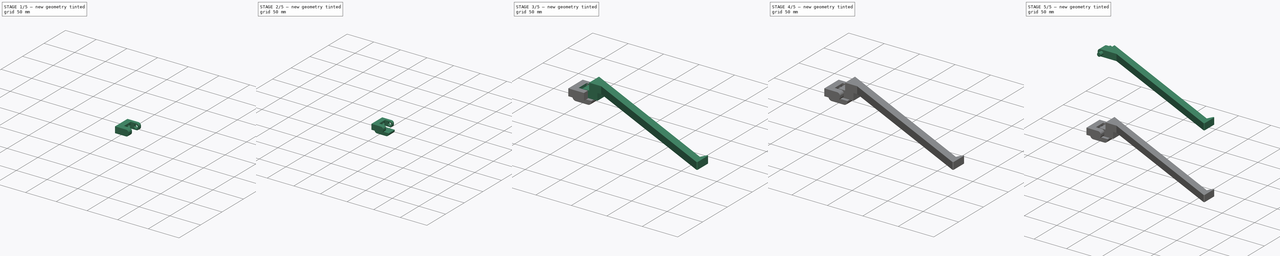
[diagram: build sequence overview — one tinted view per stage of 5, left to right]
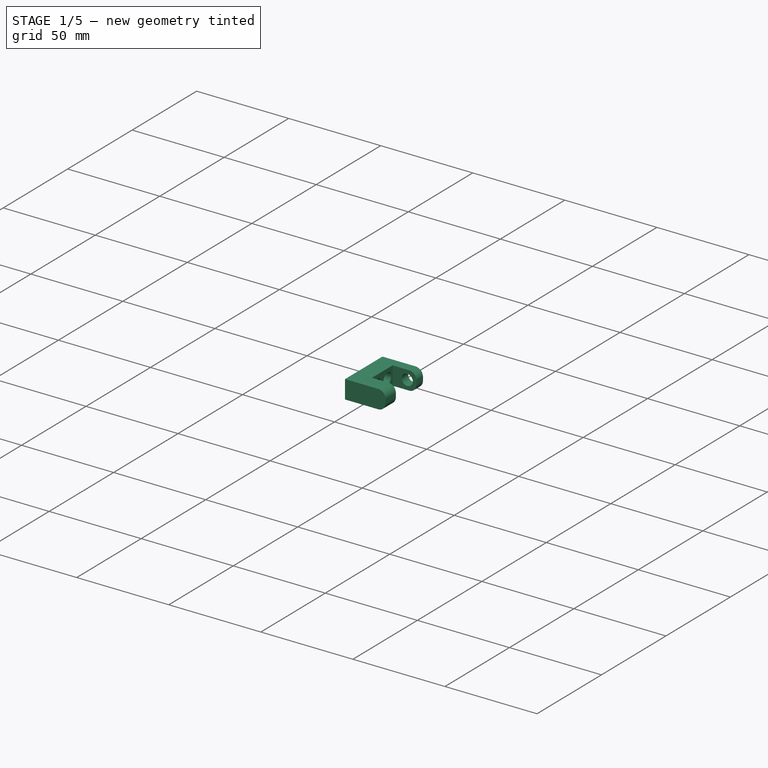
[diagram: stage 1 of 5 — iso view after this stage's code; geometry added in this stage tinted green]
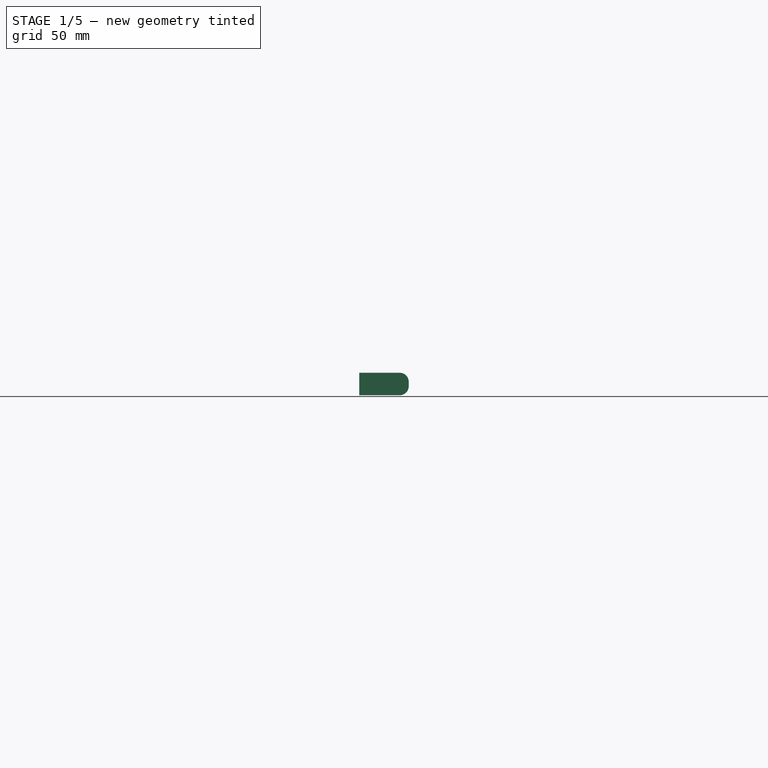
[diagram: stage 1 of 5 — front view after this stage's code; geometry added in this stage tinted green]
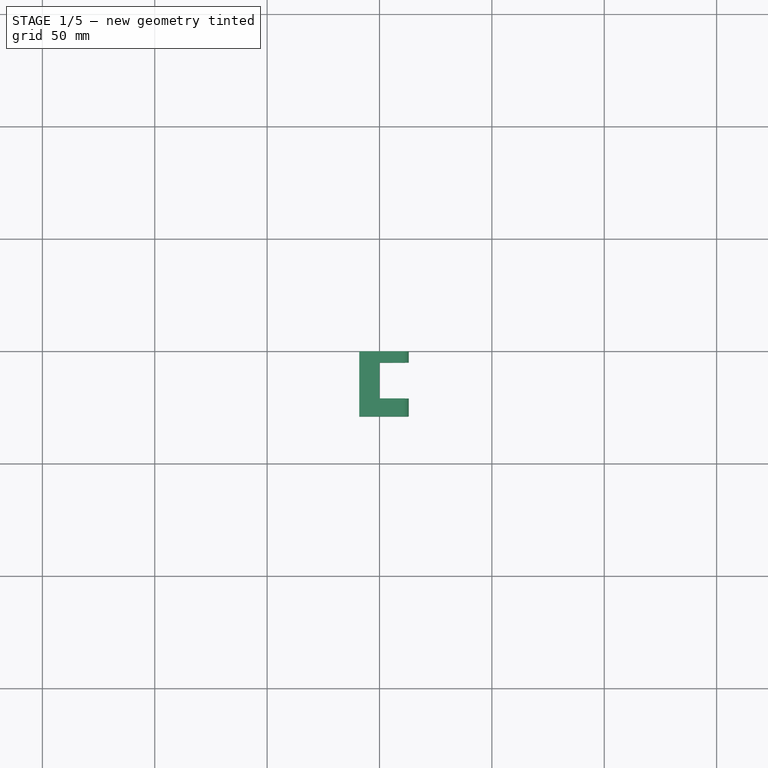
[diagram: stage 1 of 5 — top view after this stage's code; geometry added in this stage tinted green]
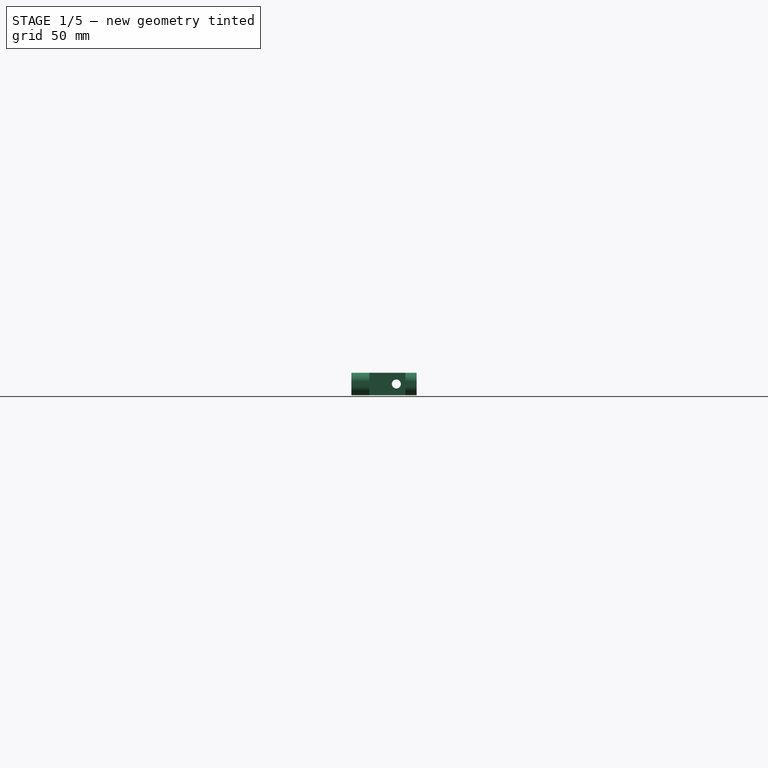
[diagram: stage 1 of 5 — right view after this stage's code; geometry added in this stage tinted green]
FCSTD DOCUMENT  (FreeCAD 0.15R4671 (Git))
Label: holder_2.0
License: CreativeCommons Attribution-ShareAlike
LicenseURL: http://creativecommons.org/licenses/by-sa/4.0/
objects: Sketcher::SketchObject×18, PartDesign::Pocket×10, PartDesign::Pad×8, PartDesign::Fillet×7, App::DocumentObjectGroup×6, Part::Cylinder×2, Part::Mirroring×1
note: 64 computed .brp shape members not serialized (recipe doc carries the construction recipe); baked Part::Feature solids carry a one-line shape summary decoded from their .brp

FEATURE [App::DocumentObjectGroup] Group  label="holder_bar_A"
  Group = -> [Pad,Pocket,Fillet]
FEATURE [Sketcher::SketchObject] Sketch002
  sketch-geometry (8):
    g0: LineSegment StartX=13 StartY=0 StartZ=0 EndX=13 EndY=-5 EndZ=0
    g1: LineSegment StartX=13 StartY=-5 StartZ=0 EndX=0 EndY=-5 EndZ=0
    g2: LineSegment StartX=0 StartY=-5 StartZ=0 EndX=0 EndY=-21 EndZ=0
    g3: LineSegment StartX=0 StartY=-21 StartZ=0 EndX=13 EndY=-21 EndZ=0
    g4: LineSegment StartX=13 StartY=-21 StartZ=0 EndX=13 EndY=-29 EndZ=0
    g5: LineSegment StartX=13 StartY=-29 StartZ=0 EndX=-9 EndY=-29 EndZ=0
    g6: LineSegment StartX=-9 StartY=-29 StartZ=0 EndX=-9 EndY=0 EndZ=0
    g7: LineSegment StartX=13 StartY=0 StartZ=0 EndX=-9 EndY=0 EndZ=0
  constraints (24):
    c: PointOnObject(g0,g-1)
    c: Vertical(g0)
    c: Coincident(g0,g1)
    c: Horizontal(g1)
    c: Coincident(g1,g2)
    c: Vertical(g2)
    c: Coincident(g2,g3)
    c: Horizontal(g3)
    c: Coincident(g3,g4)
    c: Vertical(g4)
    c: Coincident(g4,g5)
    c: Horizontal(g5)
    c: Coincident(g5,g6)
    c: Vertical(g6)
    c: Coincident(g7,g0)
    c: Coincident(g7,g6)
    c: Horizontal(g7)
    c: DistanceY(g2) = -16
    c: DistanceY(g4) = -8
    c: DistanceX(g5) = -22
    c: Equal(g3,g1)
    c: DistanceX(g1) = -13
    c: PointOnObject(g1,g-2)
    c: DistanceY(g0) = -5
FEATURE [PartDesign::Pad] Pad001  label="fix_solid"
  Length = 10
  Length2 = 100
  Sketch = -> Sketch002
  Type = 0
FEATURE [Sketcher::SketchObject] Sketch003
  ExternalGeometry = -> [Pad001]
  Placement = pos=(0,0,0) rot=(0,0.707107,0.707107;3.14159rad)
  Support = -> Pad001 [Face8]
  sketch-geometry (4):
    g0: LineSegment [constr] StartX=-8 StartY=10 StartZ=0 EndX=-8 EndY=5 EndZ=0
    g1: LineSegment [constr] StartX=-8 StartY=5 StartZ=0 EndX=-8 EndY=0 EndZ=0
    g2: Circle CenterX=-8 CenterY=5 CenterZ=0 NormalX=0 NormalY=0 NormalZ=1 Radius=3
    g3: LineSegment [constr] StartX=-8 StartY=5 StartZ=0 EndX=-13 EndY=5 EndZ=0
  constraints (12):
    c: PointOnObject(g0,g-3)
    c: Vertical(g0)
    c: Coincident(g1,g0)
    c: PointOnObject(g1,g-5)
    c: Vertical(g1)
    c: Equal(g0,g1)
    c: Coincident(g2,g0)
    c: Radius(g2) = 3
    c: Coincident(g3,g0)
    c: PointOnObject(g3,g-6)
    c: Horizontal(g3)
    c: DistanceX(g3) = -5
FEATURE [PartDesign::Pocket] Pocket001  label="fix_with_fastener_drill"
  Length = 26
  Sketch = -> Sketch003
  Type = 0
FEATURE [App::DocumentObjectGroup] Group001  label="holder_fastener_A"
  Group = -> [Cylinder]
FEATURE [PartDesign::Fillet] Fillet001  label="fix_smoothed_top"
  Base = -> Pocket001 [Edge4,Edge3]
  Radius = 4
FEATURE [PartDesign::Fillet] Fillet002  label="fix_smooth_bottom"
  Base = -> Fillet001 [Edge27,Edge22]
  Radius = 4
FEATURE [Sketcher::SketchObject] Sketch004
  ExternalGeometry = -> [Fillet002]
  Placement = pos=(0,0,0) rot=(0.57735,0.57735,0.57735;2.0944rad)
  Support = -> Fillet002 [Face4]
  sketch-geometry (8):
    g0: LineSegment [constr] StartX=-13 StartY=10 StartZ=0 EndX=-13 EndY=5 EndZ=0
    g1: LineSegment [constr] StartX=-13 StartY=5 StartZ=0 EndX=-13 EndY=0 EndZ=0
    g2: LineSegment [constr] StartX=-13 StartY=5 StartZ=0 EndX=-17 EndY=5 EndZ=0
    g3: LineSegment [constr] StartX=-17 StartY=5 StartZ=0 EndX=-21 EndY=5 EndZ=0
    g4: LineSegment [constr] StartX=-13 StartY=5 StartZ=0 EndX=-9 EndY=5 EndZ=0
    g5: LineSegment [constr] StartX=-9 StartY=5 StartZ=0 EndX=-5 EndY=5 EndZ=0
    g6: Circle CenterX=-17 CenterY=5 CenterZ=0 NormalX=0 NormalY=0 NormalZ=1 Radius=3
    g7: Circle CenterX=-9 CenterY=5 CenterZ=0 NormalX=0 NormalY=0 NormalZ=1 Radius=3
  constraints (23):
    c: PointOnObject(g0,g-3)
    c: Vertical(g0)
    c: Coincident(g1,g0)
    c: PointOnObject(g1,g-4)
    c: Vertical(g1)
    c: Coincident(g2,g0)
    c: Horizontal(g2)
    c: Coincident(g3,g2)
    c: PointOnObject(g3,g-6)
    c: Horizontal(g3)
    c: Coincident(g4,g0)
    c: Horizontal(g4)
    c: Coincident(g5,g4)
    c: PointOnObject(g5,g-5)
    c: Horizontal(g5)
    c: Equal(g3,g2)
    c: Equal(g2,g4)
    c: Equal(g4,g5)
    c: Equal(g0,g1)
    c: Coincident(g6,g2)
    c: Equal(g7,g6)
    c: Coincident(g7,g4)
    c: Radius(g7) = 3
FEATURE [PartDesign::Pocket] Pocket002  label="fix_with_holes_for_screws"
  Length = 4
  Sketch = -> Sketch004
  Type = 0
FEATURE [Sketcher::SketchObject] Sketch005
  ExternalGeometry = -> [Pocket002]
  Placement = pos=(-4,0,0) rot=(0.57735,0.57735,0.57735;2.0944rad)
  Support = -> Pocket002 [Face20]
  sketch-geometry (1):
    g0: Circle CenterX=-9 CenterY=5 CenterZ=0 NormalX=0 NormalY=0 NormalZ=1 Radius=2
  constraints (2):
    c: Coincident(g0,g-3)
    c: Radius(g0) = 2
FEATURE [PartDesign::Pocket] Pocket003  label="fix_with_top_hole_drilled"
  Length = 5
  Sketch = -> Sketch005
  Type = 1
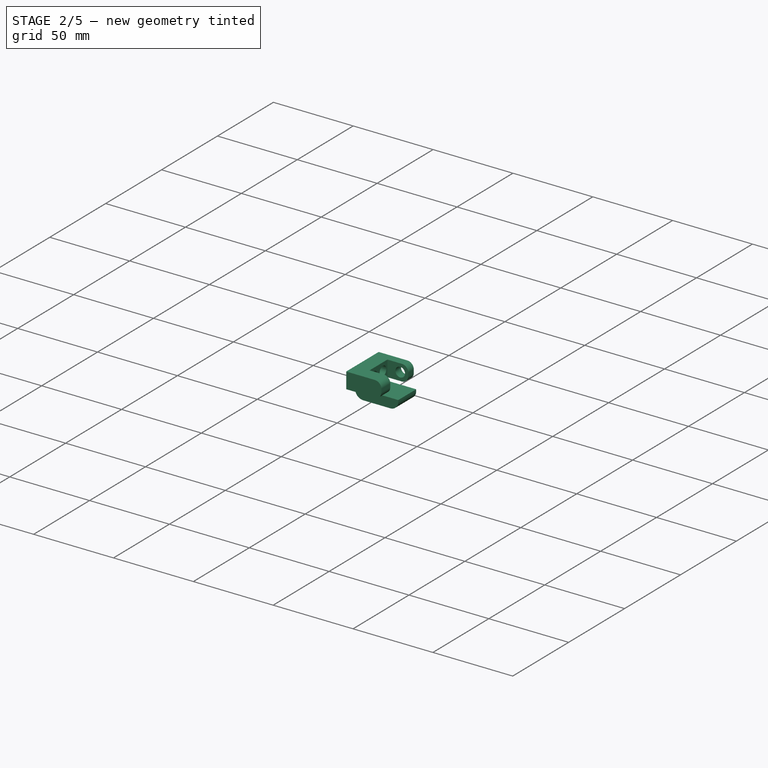
[diagram: stage 2 of 5 — iso view after this stage's code; geometry added in this stage tinted green]
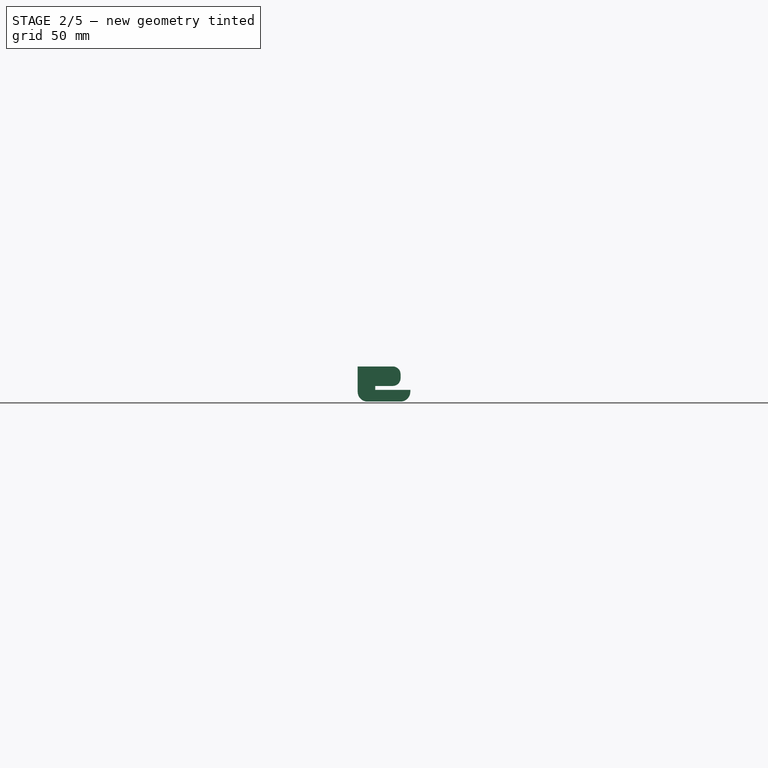
[diagram: stage 2 of 5 — front view after this stage's code; geometry added in this stage tinted green]
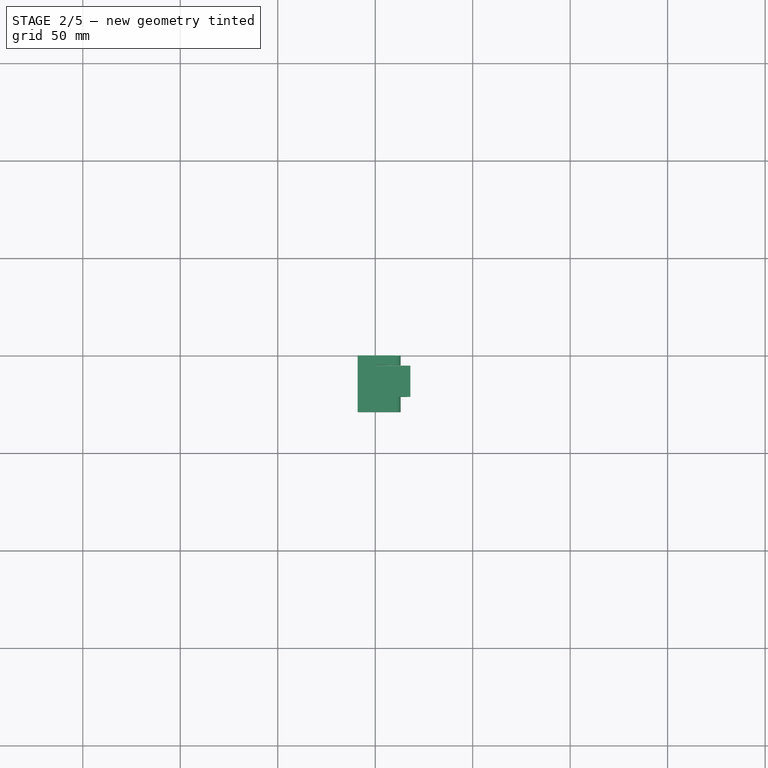
[diagram: stage 2 of 5 — top view after this stage's code; geometry added in this stage tinted green]
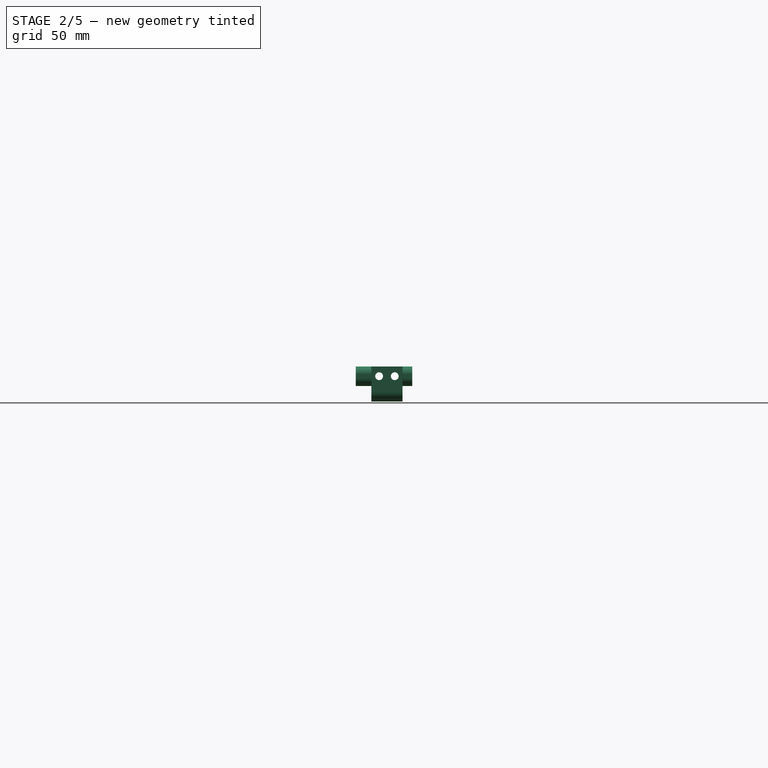
[diagram: stage 2 of 5 — right view after this stage's code; geometry added in this stage tinted green]
FEATURE [Sketcher::SketchObject] Sketch006
  ExternalGeometry = -> [Pocket003]
  Placement = pos=(-4,0,0) rot=(0.57735,0.57735,0.57735;2.0944rad)
  Support = -> Pocket003 [Face22]
  sketch-geometry (1):
    g0: Circle CenterX=-17 CenterY=5 CenterZ=0 NormalX=0 NormalY=0 NormalZ=1 Radius=2
  constraints (2):
    c: Coincident(g0,g-3)
    c: Radius(g0) = 2
FEATURE [PartDesign::Pocket] Pocket004  label="fix_with_top_bottom_hole_drilled"
  Length = 5
  Sketch = -> Sketch006
  Type = 1
FEATURE [App::DocumentObjectGroup] Group003  label="holder_bar_B"
  Group = -> [Pad002,Pad004,Pad005,Pocket010,Fillet006]
FEATURE [Sketcher::SketchObject] Sketch017
  ExternalGeometry = -> [Pocket004]
  Placement = pos=(0,0,10) rot=(0,0,1;0rad)
  Support = -> Pocket004 [Face11]
  sketch-geometry (4):
    g0: LineSegment StartX=0 StartY=-5 StartZ=0 EndX=-9 EndY=-5 EndZ=0
    g1: LineSegment StartX=0 StartY=-5 StartZ=0 EndX=0 EndY=-21 EndZ=0
    g2: LineSegment StartX=0 StartY=-21 StartZ=0 EndX=-9 EndY=-21 EndZ=0
    g3: LineSegment StartX=-9 StartY=-21 StartZ=0 EndX=-9 EndY=-5 EndZ=0
  constraints (10):
    c: Coincident(g0,g-3)
    c: PointOnObject(g0,g-4)
    c: Horizontal(g0)
    c: Coincident(g1,g0)
    c: Coincident(g1,g-3)
    c: Coincident(g2,g1)
    c: PointOnObject(g2,g-4)
    c: Horizontal(g2)
    c: Coincident(g3,g2)
    c: Coincident(g3,g0)
FEATURE [PartDesign::Pad] Pad006  label="fix_with_side_wing"
  Length = 8
  Length2 = 100
  Sketch = -> Sketch017
  Type = 0
FEATURE [Sketcher::SketchObject] Sketch018
  ExternalGeometry = -> [Pad006]
  Placement = pos=(0,0,0) rot=(0.57735,0.57735,0.57735;2.0944rad)
  Support = -> Pad006 [Face20]
  sketch-geometry (4):
    g0: LineSegment StartX=-21 StartY=18 StartZ=0 EndX=-5 EndY=18 EndZ=0
    g1: LineSegment StartX=-5 StartY=18 StartZ=0 EndX=-5 EndY=12 EndZ=0
    g2: LineSegment StartX=-5 StartY=12 StartZ=0 EndX=-21 EndY=12 EndZ=0
    g3: LineSegment StartX=-21 StartY=12 StartZ=0 EndX=-21 EndY=18 EndZ=0
  constraints (10):
    c: Coincident(g0,g-5)
    c: Coincident(g0,g-4)
    c: Coincident(g1,g0)
    c: PointOnObject(g1,g-4)
    c: Coincident(g2,g1)
    c: PointOnObject(g2,g-5)
    c: Horizontal(g2)
    c: Coincident(g3,g2)
    c: Coincident(g3,g0)
    c: DistanceY(g3) = 6
FEATURE [PartDesign::Pad] Pad007  label="fix_with_side_wing_completed"
  Length = 18
  Length2 = 100
  Sketch = -> Sketch018
  Type = 0
FEATURE [PartDesign::Fillet] Fillet007  label="fix_with_side_wing_smoothed"
  Base = -> Pad007 [Edge66,Edge34]
  Radius = 5
FEATURE [App::DocumentObjectGroup] Group002  label="holder_fix_A"
  Group = -> [Pad001,Pocket001,Fillet001,Fillet002,Pocket002,Pocket003,Pocket004,Pad006,Pad007,Fillet007]
FEATURE [Part::Mirroring] Part__Mirroring  label="fixB_with_side_wing_smoothed"
  Base = (0,0,0)
  Normal = (0,0,1)
  Placement = pos=(0,0,-100) rot=(0,0,1;0rad)
  Source = -> Fillet007
FEATURE [App::DocumentObjectGroup] Group005  label="holder_fix_B"
  Group = -> [Pad003,Pocket006,Fillet004,Fillet005,Pocket007,Pocket008,Pocket009,Part__Mirroring]
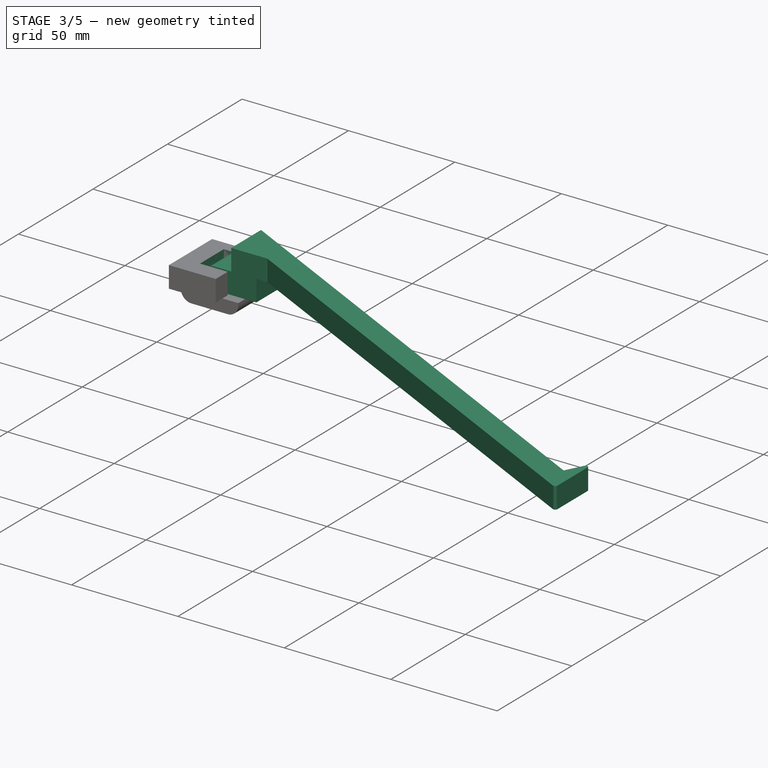
[diagram: stage 3 of 5 — iso view after this stage's code; geometry added in this stage tinted green]
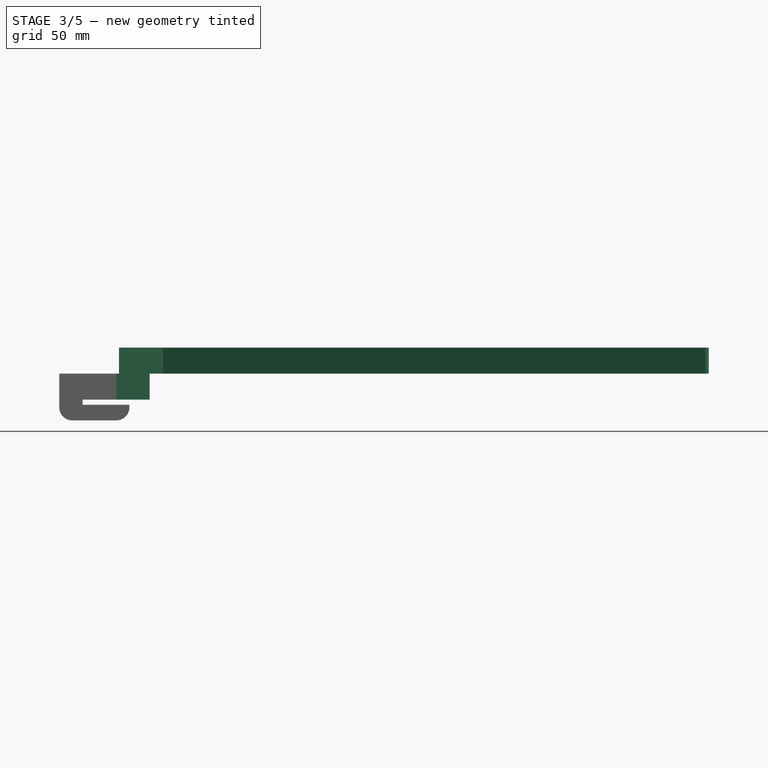
[diagram: stage 3 of 5 — front view after this stage's code; geometry added in this stage tinted green]
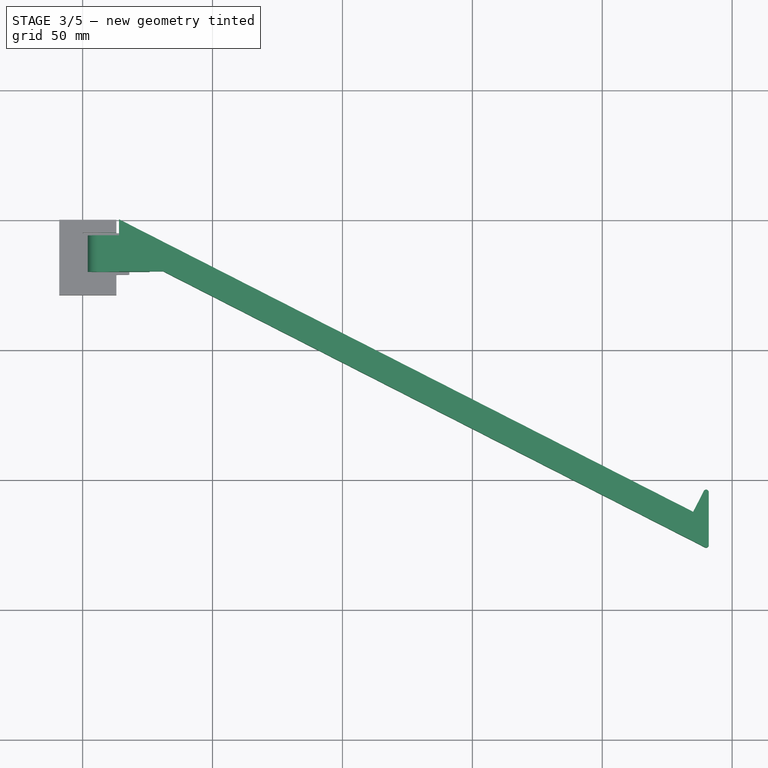
[diagram: stage 3 of 5 — top view after this stage's code; geometry added in this stage tinted green]
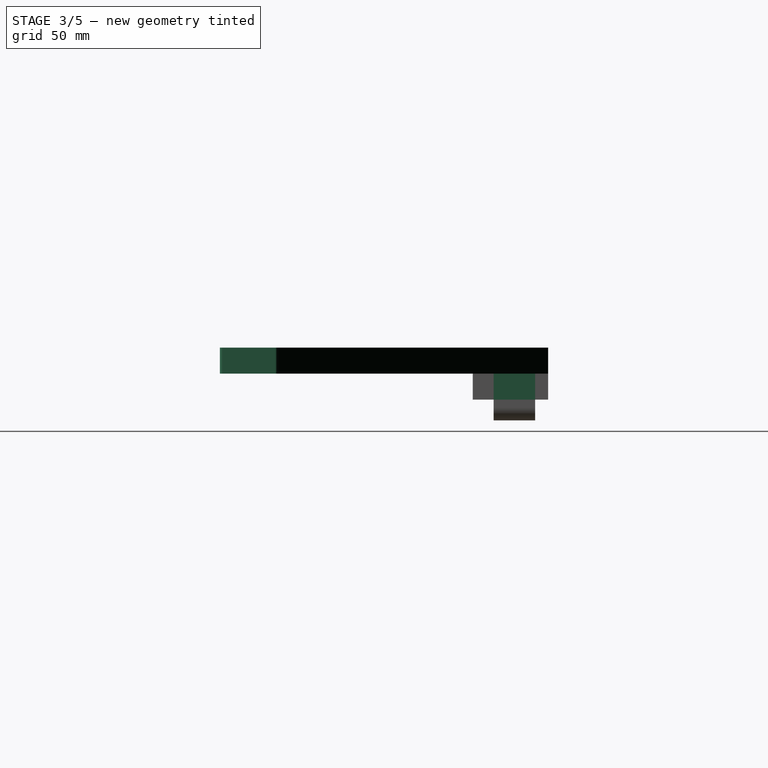
[diagram: stage 3 of 5 — right view after this stage's code; geometry added in this stage tinted green]
FEATURE [Sketcher::SketchObject] Sketch007
  Placement = pos=(2,0,-100) rot=(0,0,1;0rad)
  sketch-geometry (8):
    g0: LineSegment StartX=12 StartY=0 StartZ=0 EndX=233 EndY=-112.605 EndZ=0
    g1: LineSegment StartX=29 StartY=-20 StartZ=0 EndX=237.521 EndY=-126.247 EndZ=0
    g2: LineSegment StartX=233 StartY=-112.605 StartZ=0 EndX=237.076 EndY=-104.605 EndZ=0
    g3: LineSegment StartX=239 StartY=-125.34 StartZ=0 EndX=239 EndY=-105.067 EndZ=0
    g4: ArcOfCircle CenterX=237.983 CenterY=-105.067 CenterZ=0 NormalX=0 NormalY=0 NormalZ=1 Radius=1.01734 StartAngle=0 EndAngle=2.67035
    g5: ArcOfCircle CenterX=237.983 CenterY=-125.34 CenterZ=0 NormalX=0 NormalY=0 NormalZ=1 Radius=1.01734 StartAngle=4.24115 EndAngle=6.28319
    g6: LineSegment StartX=12 StartY=-20 StartZ=0 EndX=29 EndY=-20 EndZ=0
    g7: LineSegment StartX=12 StartY=0 StartZ=0 EndX=12 EndY=-20 EndZ=0
  constraints (22):
    c: PointOnObject(g0,g-1)
    c: Parallel(g0,g1)
    c: Coincident(g2,g0)
    c: Perpendicular(g0,g2)
    c: DistanceX(g0) = 221
    c: Tangent(g2,g4) = 1.5708
    c: Tangent(g3,g4) = -1.5708
    c: Tangent(g3,g5) = -1.5708
    c: Tangent(g1,g5) = -1.5708
    c: DistanceY(g2) = 8
    c: Vertical(g3)
    c: Equal(g5,g4)
    c: Horizontal(g6)
    c: Angle(g1,g6) = 0.471239
    c: Coincident(g1,g6)
    c: Coincident(g7,g0)
    c: Vertical(g7)
    c: Coincident(g6,g7)
    c: DistanceY(g7) = -20
    c: DistanceX(g6) = 17
    c: DistanceX(g-1,g0) = 12
    c: DistanceX(g3,g0) = -6
FEATURE [PartDesign::Pad] Pad002  label="barB_solid"
  Length = 10
  Length2 = 100
  Placement = pos=(2,0,-100) rot=(0,0,1;0rad)
  Sketch = -> Sketch007
  Type = 0
FEATURE [Sketcher::SketchObject] Sketch009
  Placement = pos=(0,0,-110) rot=(0,0,1;0rad)
  sketch-geometry (8):
    g0: LineSegment StartX=13 StartY=0 StartZ=0 EndX=13 EndY=-5 EndZ=0
    g1: LineSegment StartX=13 StartY=-5 StartZ=0 EndX=0 EndY=-5 EndZ=0
    g2: LineSegment StartX=0 StartY=-5 StartZ=0 EndX=0 EndY=-21 EndZ=0
    g3: LineSegment StartX=0 StartY=-21 StartZ=0 EndX=13 EndY=-21 EndZ=0
    g4: LineSegment StartX=13 StartY=-21 StartZ=0 EndX=13 EndY=-29 EndZ=0
    g5: LineSegment StartX=13 StartY=-29 StartZ=0 EndX=-9 EndY=-29 EndZ=0
    g6: LineSegment StartX=-9 StartY=-29 StartZ=0 EndX=-9 EndY=0 EndZ=0
    g7: LineSegment StartX=13 StartY=0 StartZ=0 EndX=-9 EndY=0 EndZ=0
  constraints (24):
    c: PointOnObject(g0,g-1)
    c: Vertical(g0)
    c: Coincident(g0,g1)
    c: Horizontal(g1)
    c: Coincident(g1,g2)
    c: Vertical(g2)
    c: Coincident(g2,g3)
    c: Horizontal(g3)
    c: Coincident(g3,g4)
    c: Vertical(g4)
    c: Coincident(g4,g5)
    c: Horizontal(g5)
    c: Coincident(g5,g6)
    c: Vertical(g6)
    c: Coincident(g7,g0)
    c: Coincident(g7,g6)
    c: Horizontal(g7)
    c: DistanceY(g2) = -16
    c: DistanceY(g4) = -8
    c: DistanceX(g5) = -22
    c: Equal(g3,g1)
    c: DistanceX(g1) = -13
    c: PointOnObject(g1,g-2)
    c: DistanceY(g0) = -5
FEATURE [PartDesign::Pad] Pad003  label="fixB_solid"
  Length = 10
  Length2 = 100
  Placement = pos=(0,0,-110) rot=(0,0,1;0rad)
  Sketch = -> Sketch009
  Type = 0
FEATURE [App::DocumentObjectGroup] Group004  label="holder_fasterner_B"
  Group = -> [Cylinder001]
FEATURE [Sketcher::SketchObject] Sketch014
  ExternalGeometry = -> [Pad002]
  Placement = pos=(2,0,-100) rot=(1,0,0;3.14159rad)
  Support = -> Pad002 [Face9]
  sketch-geometry (4):
    g0: LineSegment StartX=12 StartY=20 StartZ=0 EndX=12 EndY=6 EndZ=0
    g1: LineSegment StartX=12 StartY=6 StartZ=0 EndX=23.7757 EndY=6 EndZ=0
    g2: LineSegment StartX=23.7757 StartY=6 StartZ=0 EndX=23.7757 EndY=20 EndZ=0
    g3: LineSegment StartX=23.7757 StartY=20 StartZ=0 EndX=12 EndY=20 EndZ=0
  constraints (12):
    c: Coincident(g0,g-4)
    c: PointOnObject(g0,g-4)
    c: Coincident(g1,g0)
    c: Horizontal(g1)
    c: Coincident(g2,g1)
    c: Vertical(g2)
    c: Coincident(g3,g2)
    c: Coincident(g3,g0)
    c: Horizontal(g3)
    c: Equal(g0,g2)
    c: DistanceY(g0) = -14
    c: PointOnObject(g1,g-5)
FEATURE [PartDesign::Pad] Pad004  label="barB_solid_side_wing"
  Length = 10
  Length2 = 100
  Placement = pos=(2,0,-100) rot=(0,0,1;0rad)
  Sketch = -> Sketch014
  Type = 0
FEATURE [Sketcher::SketchObject] Sketch015
  ExternalGeometry = -> [Pad004]
  Placement = pos=(14,0,-100) rot=(0.57735,-0.57735,-0.57735;2.0944rad)
  Support = -> Pad004 [Face14]
  sketch-geometry (4):
    g0: LineSegment StartX=6 StartY=0 StartZ=0 EndX=6 EndY=-10 EndZ=0
    g1: LineSegment StartX=6 StartY=-10 StartZ=0 EndX=20 EndY=-10 EndZ=0
    g2: LineSegment StartX=20 StartY=-10 StartZ=0 EndX=20 EndY=0 EndZ=0
    g3: LineSegment StartX=20 StartY=0 StartZ=0 EndX=6 EndY=0 EndZ=0
  constraints (8):
    c: Coincident(g-3,g0)
    c: Coincident(g0,g-4)
    c: Coincident(g0,g1)
    c: Coincident(g1,g-5)
    c: Coincident(g1,g2)
    c: Coincident(g2,g-5)
    c: Coincident(g2,g3)
    c: Coincident(g3,g0)
FEATURE [PartDesign::Pad] Pad005  label="barB_solid_side_wing_completed"
  Length = 12
  Length2 = 100
  Placement = pos=(2,0,-100) rot=(0,0,1;0rad)
  Sketch = -> Sketch015
  Type = 0
FEATURE [Sketcher::SketchObject] Sketch016
  ExternalGeometry = -> [Pad005]
  Placement = pos=(2,-6,-100) rot=(0,0.707107,0.707107;3.14159rad)
  Support = -> Pad005 [Face16]
  sketch-geometry (6):
    g0: LineSegment [constr] StartX=-6 StartY=0 StartZ=0 EndX=-6 EndY=-5 EndZ=0
    g1: LineSegment [constr] StartX=-6 StartY=-5 StartZ=0 EndX=-6 EndY=-10 EndZ=0
    g2: LineSegment [constr] StartX=-6 StartY=-5 StartZ=0 EndX=3e-12 EndY=-5 EndZ=0
    g3: LineSegment [constr] StartX=-12 StartY=-10 StartZ=0 EndX=-12 EndY=0 EndZ=0
    g4: LineSegment [constr] StartX=-6 StartY=-5 StartZ=0 EndX=-12 EndY=-5 EndZ=0
    g5: Circle CenterX=-6 CenterY=-5 CenterZ=0 NormalX=0 NormalY=0 NormalZ=1 Radius=3
  constraints (17):
    c: PointOnObject(g0,g-4)
    c: Vertical(g0)
    c: Coincident(g1,g0)
    c: PointOnObject(g1,g-3)
    c: Vertical(g1)
    c: Coincident(g2,g0)
    c: PointOnObject(g2,g-5)
    c: Horizontal(g2)
    c: Coincident(g3,g-3)
    c: Coincident(g3,g-4)
    c: Coincident(g4,g0)
    c: PointOnObject(g4,g3)
    c: Horizontal(g4)
    c: Equal(g4,g2)
    c: Equal(g1,g0)
    c: Coincident(g5,g0)
    c: Radius(g5) = 3
FEATURE [PartDesign::Pocket] Pocket010  label="barB_width_drill"
  Length = 5
  Placement = pos=(2,0,-100) rot=(0,0,1;0rad)
  Sketch = -> Sketch016
  Type = 1
FEATURE [PartDesign::Fillet] Fillet006  label="barB_smoothed"
  Base = -> Pocket010 [Edge35,Edge38]
  Placement = pos=(2,0,-100) rot=(0,0,1;0rad)
  Radius = 4
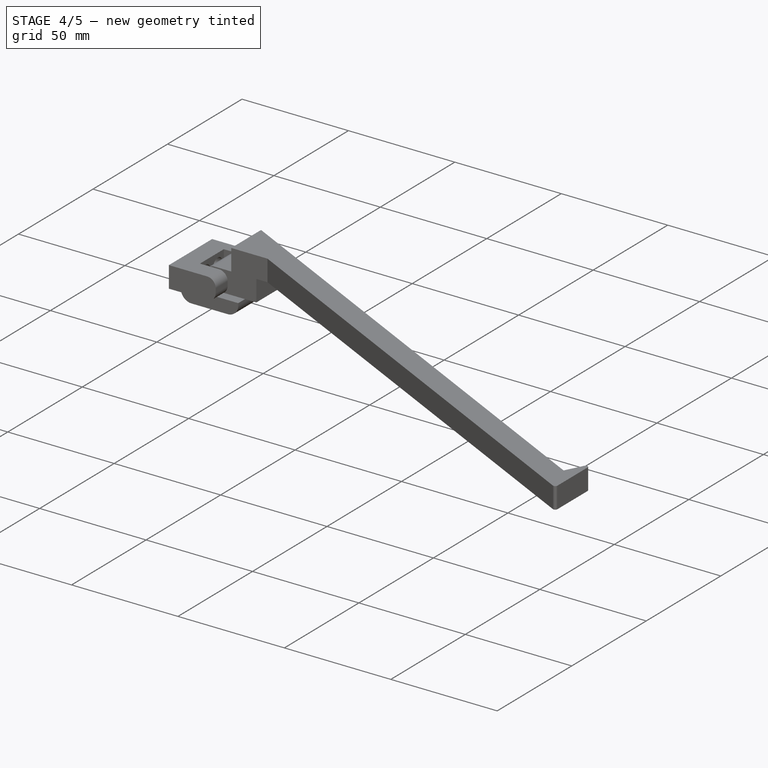
[diagram: stage 4 of 5 — iso view after this stage's code; geometry added in this stage tinted green]
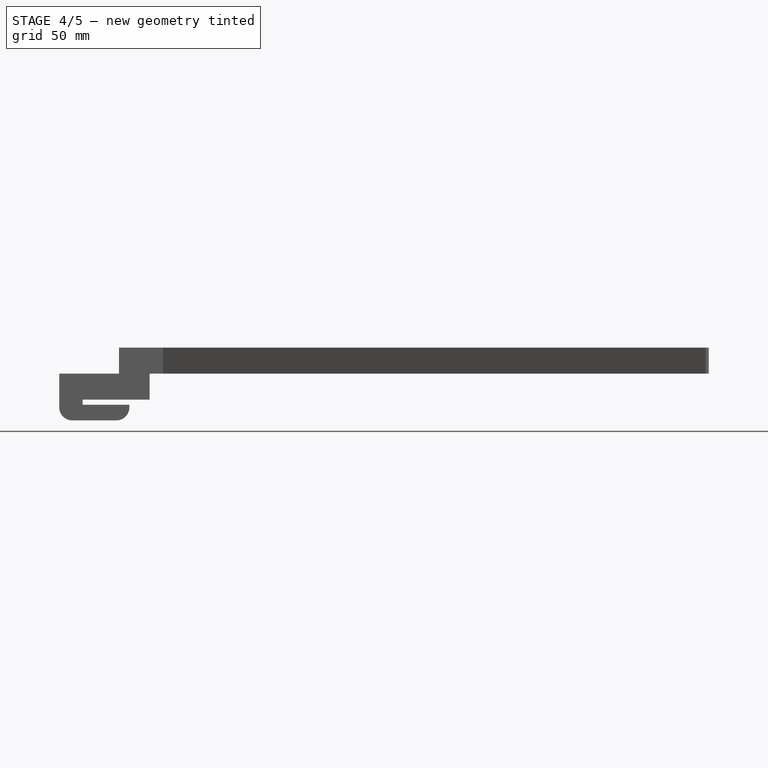
[diagram: stage 4 of 5 — front view after this stage's code; geometry added in this stage tinted green]
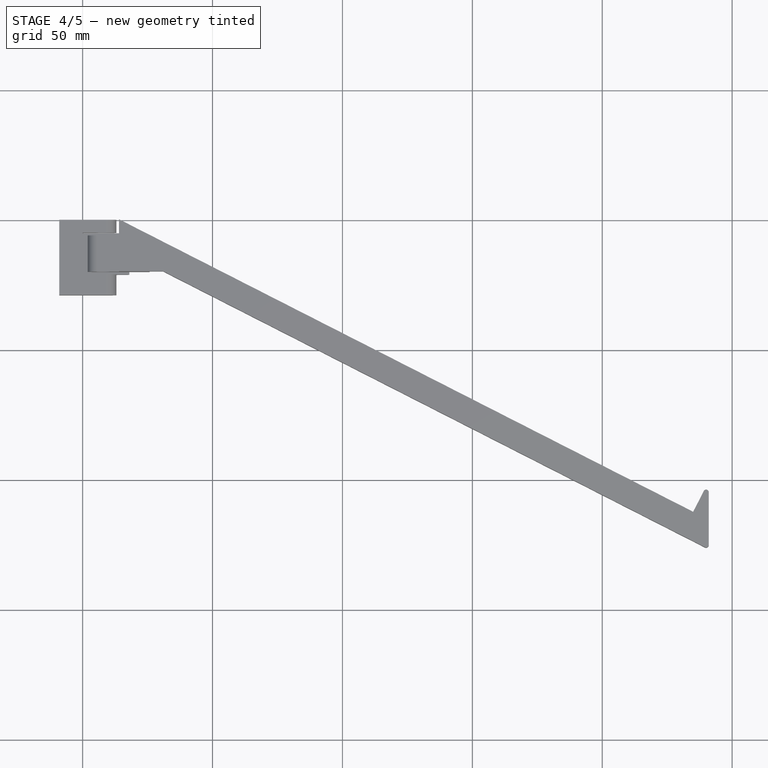
[diagram: stage 4 of 5 — top view after this stage's code; geometry added in this stage tinted green]
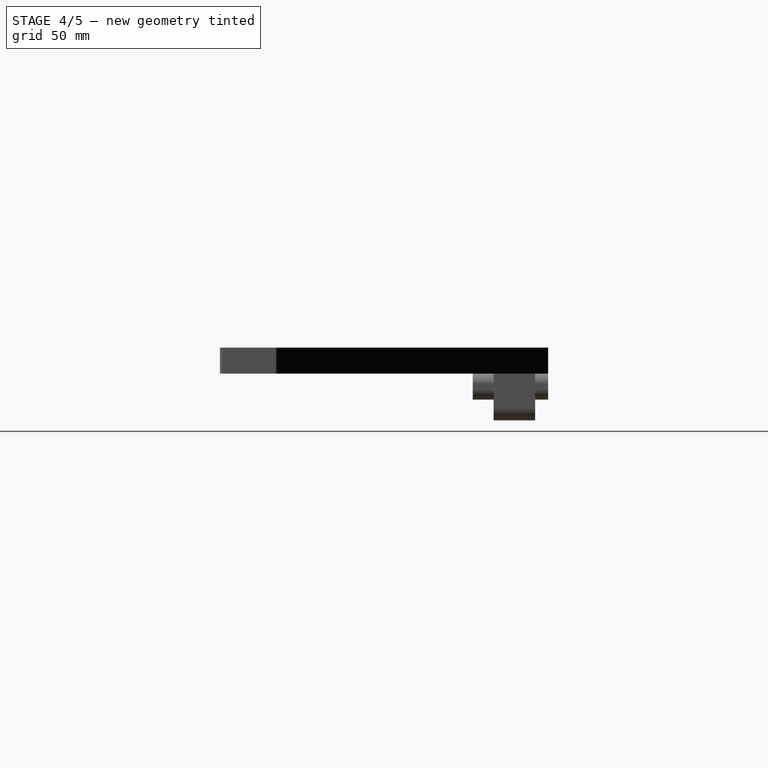
[diagram: stage 4 of 5 — right view after this stage's code; geometry added in this stage tinted green]
FEATURE [Sketcher::SketchObject] Sketch010
  ExternalGeometry = -> [Pad003]
  Placement = pos=(0,0,-110) rot=(0,0.707107,0.707107;3.14159rad)
  Support = -> Pad003 [Face8]
  sketch-geometry (4):
    g0: LineSegment [constr] StartX=-8 StartY=10 StartZ=0 EndX=-8 EndY=5 EndZ=0
    g1: LineSegment [constr] StartX=-8 StartY=5 StartZ=0 EndX=-8 EndY=0 EndZ=0
    g2: Circle CenterX=-8 CenterY=5 CenterZ=0 NormalX=0 NormalY=0 NormalZ=1 Radius=3
    g3: LineSegment [constr] StartX=-8 StartY=5 StartZ=0 EndX=-13 EndY=5 EndZ=0
  constraints (12):
    c: PointOnObject(g0,g-3)
    c: Vertical(g0)
    c: Coincident(g1,g0)
    c: PointOnObject(g1,g-5)
    c: Vertical(g1)
    c: Equal(g0,g1)
    c: Coincident(g2,g0)
    c: Radius(g2) = 3
    c: Coincident(g3,g0)
    c: PointOnObject(g3,g-6)
    c: Horizontal(g3)
    c: DistanceX(g3) = -5
FEATURE [PartDesign::Pocket] Pocket006  label="fixB_with_fastener_drill"
  Length = 26
  Placement = pos=(0,0,-110) rot=(0,0,1;0rad)
  Sketch = -> Sketch010
  Type = 0
FEATURE [PartDesign::Fillet] Fillet004  label="fixB_smoothed_top"
  Base = -> Pocket006 [Edge4,Edge3]
  Placement = pos=(0,0,-110) rot=(0,0,1;0rad)
  Radius = 4
FEATURE [PartDesign::Fillet] Fillet005  label="fixB_smooth_bottom"
  Base = -> Fillet004 [Edge27,Edge22]
  Placement = pos=(0,0,-110) rot=(0,0,1;0rad)
  Radius = 4
FEATURE [Sketcher::SketchObject] Sketch011
  ExternalGeometry = -> [Fillet005]
  Placement = pos=(0,0,-110) rot=(0.57735,0.57735,0.57735;2.0944rad)
  Support = -> Fillet005 [Face4]
  sketch-geometry (8):
    g0: LineSegment [constr] StartX=-13 StartY=10 StartZ=0 EndX=-13 EndY=5 EndZ=0
    g1: LineSegment [constr] StartX=-13 StartY=5 StartZ=0 EndX=-13 EndY=0 EndZ=0
    g2: LineSegment [constr] StartX=-13 StartY=5 StartZ=0 EndX=-17 EndY=5 EndZ=0
    g3: LineSegment [constr] StartX=-17 StartY=5 StartZ=0 EndX=-21 EndY=5 EndZ=0
    g4: LineSegment [constr] StartX=-13 StartY=5 StartZ=0 EndX=-9 EndY=5 EndZ=0
    g5: LineSegment [constr] StartX=-9 StartY=5 StartZ=0 EndX=-5 EndY=5 EndZ=0
    g6: Circle CenterX=-17 CenterY=5 CenterZ=0 NormalX=0 NormalY=0 NormalZ=1 Radius=3
    g7: Circle CenterX=-9 CenterY=5 CenterZ=0 NormalX=0 NormalY=0 NormalZ=1 Radius=3
  constraints (23):
    c: PointOnObject(g0,g-3)
    c: Vertical(g0)
    c: Coincident(g1,g0)
    c: PointOnObject(g1,g-4)
    c: Vertical(g1)
    c: Coincident(g2,g0)
    c: Horizontal(g2)
    c: Coincident(g3,g2)
    c: PointOnObject(g3,g-6)
    c: Horizontal(g3)
    c: Coincident(g4,g0)
    c: Horizontal(g4)
    c: Coincident(g5,g4)
    c: PointOnObject(g5,g-5)
    c: Horizontal(g5)
    c: Equal(g3,g2)
    c: Equal(g2,g4)
    c: Equal(g4,g5)
    c: Equal(g0,g1)
    c: Coincident(g6,g2)
    c: Equal(g7,g6)
    c: Coincident(g7,g4)
    c: Radius(g7) = 3
FEATURE [PartDesign::Pocket] Pocket007  label="fixB_with_holes_for_screws"
  Length = 4
  Placement = pos=(0,0,-110) rot=(0,0,1;0rad)
  Sketch = -> Sketch011
  Type = 0
FEATURE [Sketcher::SketchObject] Sketch012
  ExternalGeometry = -> [Pocket007]
  Placement = pos=(-4,0,-110) rot=(0.57735,0.57735,0.57735;2.0944rad)
  Support = -> Pocket007 [Face20]
  sketch-geometry (1):
    g0: Circle CenterX=-9 CenterY=5 CenterZ=0 NormalX=0 NormalY=0 NormalZ=1 Radius=2
  constraints (2):
    c: Coincident(g0,g-3)
    c: Radius(g0) = 2
FEATURE [PartDesign::Pocket] Pocket008  label="fixB_with_top_hole_drilled"
  Length = 5
  Placement = pos=(0,0,-110) rot=(0,0,1;0rad)
  Sketch = -> Sketch012
  Type = 1
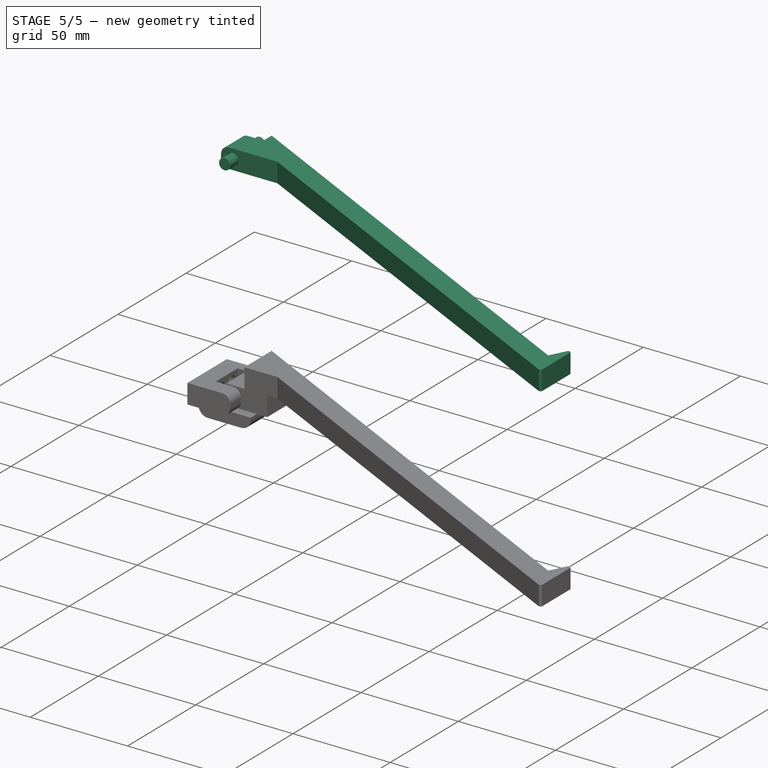
[diagram: stage 5 of 5 — iso view after this stage's code; geometry added in this stage tinted green]
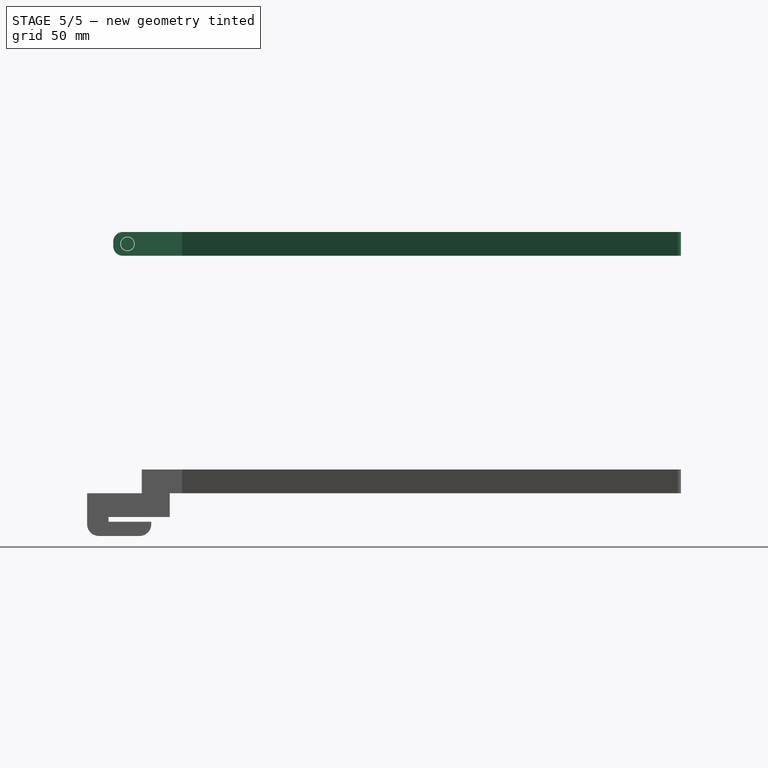
[diagram: stage 5 of 5 — front view after this stage's code; geometry added in this stage tinted green]
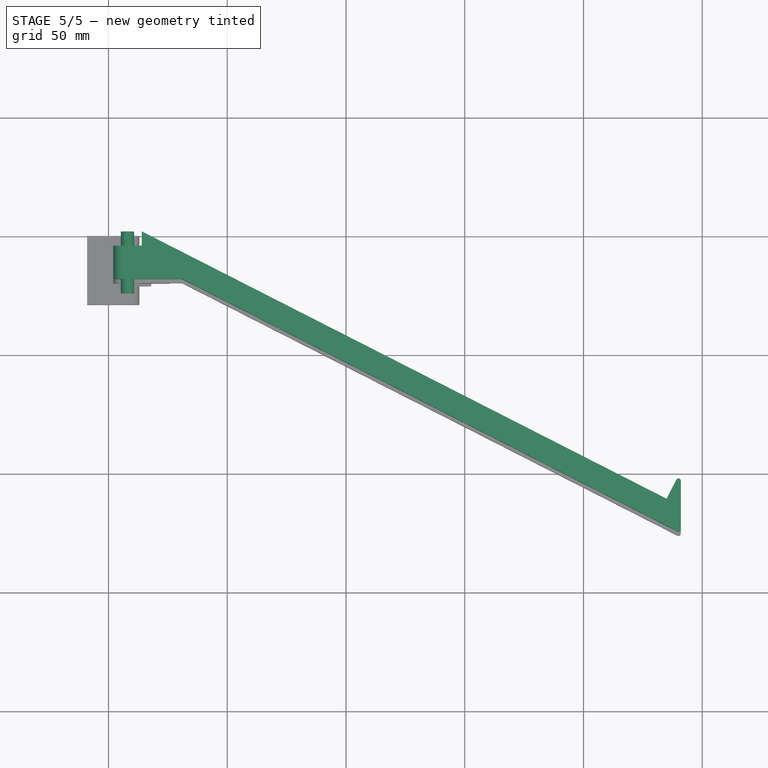
[diagram: stage 5 of 5 — top view after this stage's code; geometry added in this stage tinted green]
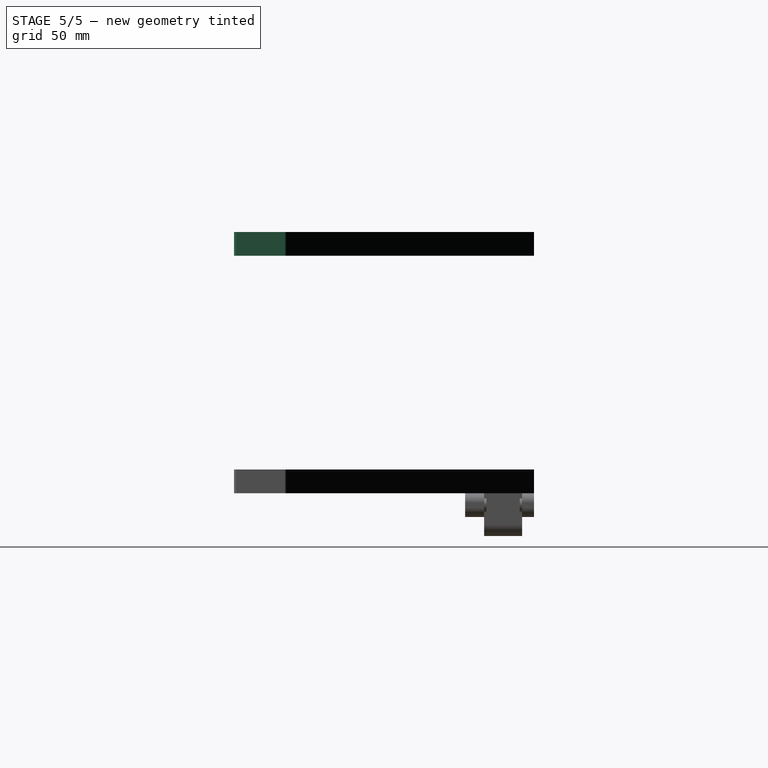
[diagram: stage 5 of 5 — right view after this stage's code; geometry added in this stage tinted green]
FEATURE [Sketcher::SketchObject] Sketch
  Placement = pos=(2,0,0) rot=(0,0,1;0rad)
  sketch-geometry (10):
    g0: LineSegment StartX=12 StartY=0 StartZ=0 EndX=233 EndY=-112.605 EndZ=0
    g1: LineSegment StartX=29 StartY=-20 StartZ=0 EndX=237.521 EndY=-126.247 EndZ=0
    g2: LineSegment StartX=233 StartY=-112.605 StartZ=0 EndX=237.076 EndY=-104.605 EndZ=0
    g3: LineSegment StartX=239 StartY=-125.34 StartZ=0 EndX=239 EndY=-105.067 EndZ=0
    g4: ArcOfCircle CenterX=237.983 CenterY=-105.067 CenterZ=0 NormalX=0 NormalY=0 NormalZ=1 Radius=1.01734 StartAngle=0 EndAngle=2.67035
    g5: ArcOfCircle CenterX=237.983 CenterY=-125.34 CenterZ=0 NormalX=0 NormalY=0 NormalZ=1 Radius=1.01734 StartAngle=4.24115 EndAngle=6.28319
    g6: LineSegment StartX=0 StartY=-6 StartZ=0 EndX=0 EndY=-20 EndZ=0
    g7: LineSegment StartX=0 StartY=-20 StartZ=0 EndX=29 EndY=-20 EndZ=0
    g8: LineSegment StartX=0 StartY=-6 StartZ=0 EndX=12 EndY=-6 EndZ=0
    g9: LineSegment StartX=12 StartY=-6 StartZ=0 EndX=12 EndY=0 EndZ=0
  constraints (28):
    c: PointOnObject(g0,g-1)
    c: Parallel(g0,g1)
    c: Coincident(g2,g0)
    c: Perpendicular(g0,g2)
    c: DistanceX(g0) = 221
    c: Tangent(g2,g4) = 1.5708
    c: Tangent(g3,g4) = -1.5708
    c: Tangent(g3,g5) = -1.5708
    c: Tangent(g1,g5) = -1.5708
    c: DistanceY(g2) = 8
    c: Vertical(g3)
    c: Equal(g5,g4)
    c: PointOnObject(g6,g-2)
    c: Vertical(g6)
    c: Coincident(g7,g6)
    c: Horizontal(g7)
    c: Angle(g1,g7) = 0.471239
    c: Coincident(g1,g7)
    c: Horizontal(g8)
    c: Coincident(g9,g8)
    c: Vertical(g9)
    c: Coincident(g6,g8)
    c: DistanceY(g0,g6) = -20
    c: DistanceX(g8) = 12
    c: DistanceY(g6) = -14
    c: Coincident(g0,g9)
    c: DistanceX(g3,g0) = -6
    c: DistanceX(g7) = 29
FEATURE [PartDesign::Pad] Pad  label="bar_solid"
  Length = 10
  Length2 = 100
  Placement = pos=(2,0,0) rot=(0,0,1;0rad)
  Sketch = -> Sketch
  Type = 0
FEATURE [Sketcher::SketchObject] Sketch001
  ExternalGeometry = -> [Pad]
  Placement = pos=(2,-6,0) rot=(0,0.707107,0.707107;3.14159rad)
  Support = -> Pad [Face1]
  sketch-geometry (5):
    g0: LineSegment [constr] StartX=-6 StartY=10 StartZ=0 EndX=-6 EndY=5 EndZ=0
    g1: LineSegment [constr] StartX=-6 StartY=5 StartZ=0 EndX=-6 EndY=0 EndZ=0
    g2: LineSegment [constr] StartX=-6 StartY=5 StartZ=0 EndX=-12 EndY=5 EndZ=0
    g3: Circle CenterX=-6 CenterY=5 CenterZ=0 NormalX=0 NormalY=0 NormalZ=1 Radius=3
    g4: LineSegment [constr] StartX=-6 StartY=5 StartZ=0 EndX=0 EndY=5 EndZ=0
  constraints (15):
    c: PointOnObject(g0,g-3)
    c: Vertical(g0)
    c: Coincident(g1,g0)
    c: PointOnObject(g1,g-5)
    c: Vertical(g1)
    c: Coincident(g2,g0)
    c: PointOnObject(g2,g-4)
    c: Horizontal(g2)
    c: Coincident(g3,g0)
    c: Radius(g3) = 3
    c: Equal(g0,g1)
    c: Coincident(g4,g0)
    c: PointOnObject(g4,g-2)
    c: Horizontal(g4)
    c: Equal(g4,g2)
FEATURE [PartDesign::Pocket] Pocket  label="bar_with_drill"
  Length = 5
  Placement = pos=(2,0,0) rot=(0,0,1;0rad)
  Sketch = -> Sketch001
  Type = 1
FEATURE [PartDesign::Fillet] Fillet  label="bar_smoothed"
  Base = -> Pocket [Edge7,Edge8]
  Placement = pos=(2,0,0) rot=(0,0,1;0rad)
  Radius = 4
FEATURE [Part::Cylinder] Cylinder  label="cylindrical_fastener"
  Angle = 360
  Height = 26
  Placement = pos=(8,0,5) rot=(1,0,0;1.5708rad)
  Radius = 2.8
FEATURE [Part::Cylinder] Cylinder001  label="cylindrical_fastenerB"
  Angle = 360
  Height = 26
  Placement = pos=(8,0,-105) rot=(1,0,0;1.5708rad)
  Radius = 2.8
FEATURE [Sketcher::SketchObject] Sketch013
  ExternalGeometry = -> [Pocket008]
  Placement = pos=(-4,0,-110) rot=(0.57735,0.57735,0.57735;2.0944rad)
  Support = -> Pocket008 [Face22]
  sketch-geometry (1):
    g0: Circle CenterX=-17 CenterY=5 CenterZ=0 NormalX=0 NormalY=0 NormalZ=1 Radius=2
  constraints (2):
    c: Coincident(g0,g-3)
    c: Radius(g0) = 2
FEATURE [PartDesign::Pocket] Pocket009  label="fixB_with_top_bottom_hole_drilled"
  Length = 5
  Placement = pos=(0,0,-110) rot=(0,0,1;0rad)
  Sketch = -> Sketch013
  Type = 1
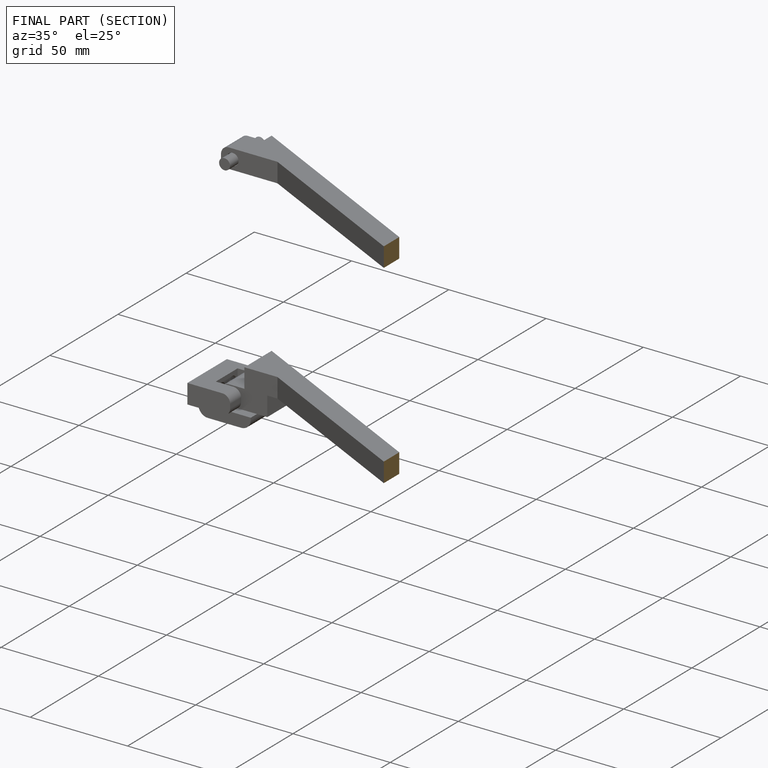
[diagram: finished part — half-section view (interior)]
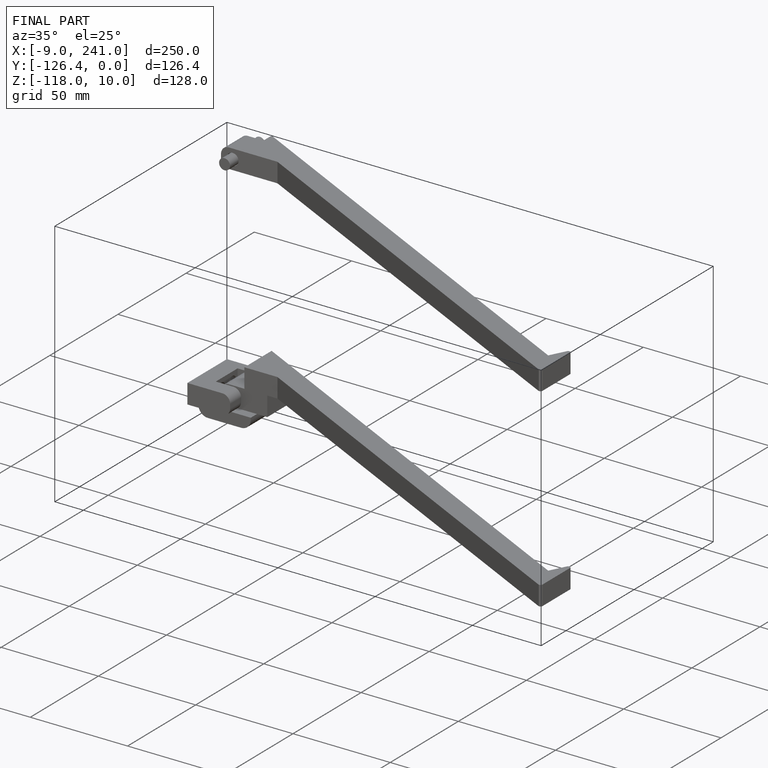
[diagram: finished part — iso view with bounding-box wireframe]
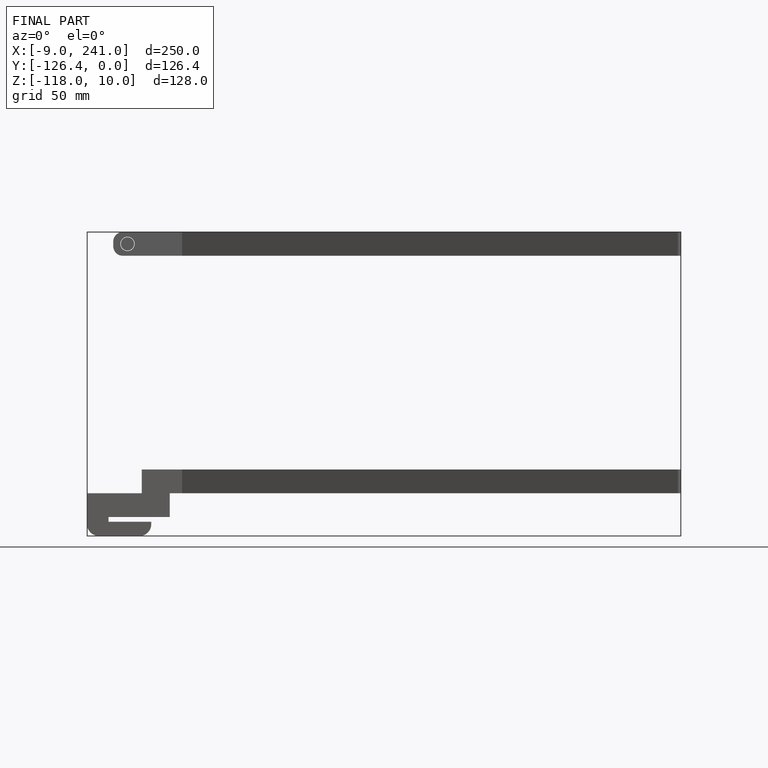
[diagram: finished part — front view with bounding-box wireframe]
